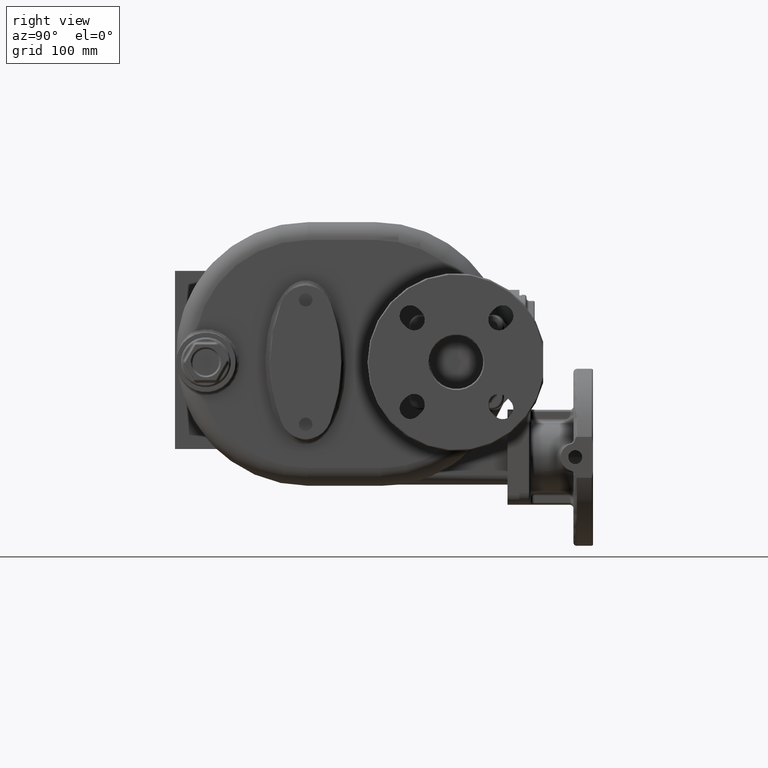
[diagram: clean part render]
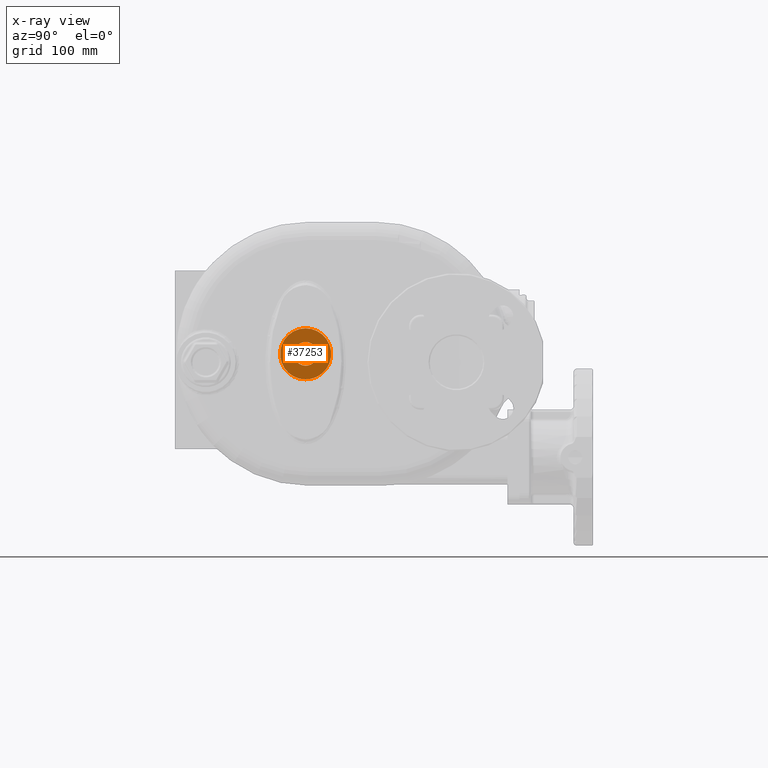
[diagram: x-ray — body ghosted, one internal face saturated and labeled with its STEP entity id]
A machine part, right view, then the same camera in x-ray: the body is ghosted and one INTERNAL B-rep face — a face not visible from any outside direction — is saturated and labeled: STEP entity #37253.
In plain terms, the highlighted planar face has unit normal (-1, 0, 0).
Its self-contained STEP definition (entity closure, byte-faithful):
#12625=CARTESIAN_POINT('',(-2.265E2,1.1E2,0.E0));
#12626=DIRECTION('',(-1.E0,0.E0,0.E0));
#12627=DIRECTION('',(0.E0,0.E0,-1.E0));
#12628=AXIS2_PLACEMENT_3D('',#12625,#12626,#12627);
#12630=CARTESIAN_POINT('',(-2.265E2,1.1E2,0.E0));
#12631=DIRECTION('',(-1.E0,0.E0,0.E0));
#12632=DIRECTION('',(0.E0,0.E0,1.E0));
#12633=AXIS2_PLACEMENT_3D('',#12630,#12631,#12632);
#12635=CARTESIAN_POINT('',(-2.265E2,1.1E2,0.E0));
#12636=DIRECTION('',(1.E0,0.E0,0.E0));
#12637=DIRECTION('',(0.E0,0.E0,-1.E0));
#12638=AXIS2_PLACEMENT_3D('',#12635,#12636,#12637);
#12640=CARTESIAN_POINT('',(-2.265E2,1.1E2,0.E0));
#12641=DIRECTION('',(1.E0,0.E0,0.E0));
#12642=DIRECTION('',(0.E0,0.E0,1.E0));
#12643=AXIS2_PLACEMENT_3D('',#12640,#12641,#12642);
#15353=CARTESIAN_POINT('',(-2.265E2,1.1E2,-1.E1));
#15354=CARTESIAN_POINT('',(-2.265E2,1.1E2,1.E1));
#15355=VERTEX_POINT('',#15353);
#15356=VERTEX_POINT('',#15354);
#15417=CARTESIAN_POINT('',(-2.265E2,1.1E2,-2.15E1));
#15418=CARTESIAN_POINT('',(-2.265E2,1.1E2,2.15E1));
#15419=VERTEX_POINT('',#15417);
#15420=VERTEX_POINT('',#15418);
#37237=CARTESIAN_POINT('',(-2.265E2,1.1E2,0.E0));
#37238=DIRECTION('',(-1.E0,0.E0,0.E0));
#37239=DIRECTION('',(0.E0,-1.E0,0.E0));
#37240=AXIS2_PLACEMENT_3D('',#37237,#37238,#37239);
#37241=PLANE('',#37240);
#37242=ORIENTED_EDGE('',*,*,#37227,.F.);
#37244=ORIENTED_EDGE('',*,*,#37243,.F.);
#37245=EDGE_LOOP('',(#37242,#37244));
#37246=FACE_OUTER_BOUND('',#37245,.F.);
#37248=ORIENTED_EDGE('',*,*,#37247,.F.);
#37250=ORIENTED_EDGE('',*,*,#37249,.F.);
#37251=EDGE_LOOP('',(#37248,#37250));
#37252=FACE_BOUND('',#37251,.F.);
#37253=ADVANCED_FACE('',(#37246,#37252),#37241,.T.);
#12629=CIRCLE('',#12628,2.15E1);
#12634=CIRCLE('',#12633,2.15E1);
#12639=CIRCLE('',#12638,1.E1);
#12644=CIRCLE('',#12643,1.E1);
#37227=EDGE_CURVE('',#15419,#15420,#12629,.T.);
#37243=EDGE_CURVE('',#15420,#15419,#12634,.T.);
#37247=EDGE_CURVE('',#15355,#15356,#12639,.T.);
#37249=EDGE_CURVE('',#15356,#15355,#12644,.T.);